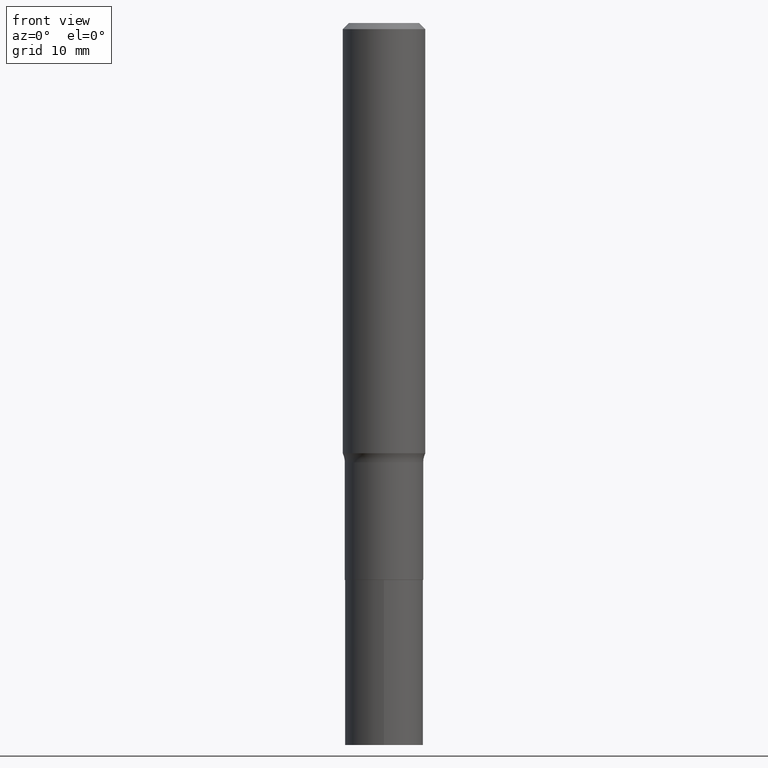
[diagram: clean part render]
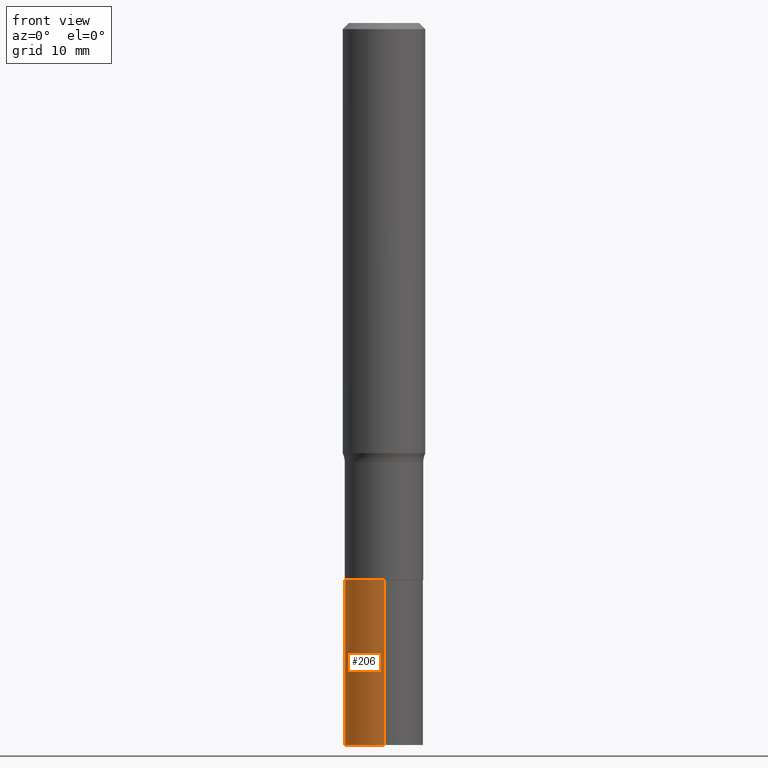
[diagram: same view with one face highlighted and labeled with its STEP entity id]
A machine part, front view. The second image highlights one B-rep face of the part: STEP entity #206.
In plain terms, the highlighted cylindrical surface (partial cylindrical patch) has radius 3.7998 mm, axis along (-0, 0, 1).
Its self-contained STEP definition (entity closure, byte-faithful):
#3 = CYLINDRICAL_SURFACE ( 'NONE', #328, 0.1496000000000000107 ) ;
#28 = CARTESIAN_POINT ( 'NONE',  ( 6.739685724306814341E-29, -9.621860887695710828E-15, -2.755900000000000460 ) ) ;
#37 = FACE_OUTER_BOUND ( 'NONE', #89, .T. ) ;
#43 = DIRECTION ( 'NONE',  ( -2.445815221012428849E-29, 3.490985253093755902E-15, 1.000000000000000000 ) ) ;
#66 = VECTOR ( 'NONE', #43, 39.37007874015748143 ) ;
#83 = DIRECTION ( 'NONE',  ( -6.982962677686265922E-15, -1.000000000000000000, 3.652203200085913145E-15 ) ) ;
#88 = ORIENTED_EDGE ( 'NONE', *, *, #312, .T. ) ;
#89 = EDGE_LOOP ( 'NONE', ( #317, #88, #266, #184 ) ) ;
#91 = CIRCLE ( 'NONE', #195, 0.1496000000000000107 ) ;
#97 = CARTESIAN_POINT ( 'NONE',  ( 1.062971932697177205E-15, 0.1495999999999925723, -2.125900000000000567 ) ) ;
#115 = EDGE_CURVE ( 'NONE', #176, #407, #91, .T. ) ;
#141 = DIRECTION ( 'NONE',  ( -2.445815221012428849E-29, 3.490985253093755902E-15, 1.000000000000000000 ) ) ;
#144 = CARTESIAN_POINT ( 'NONE',  ( 5.198822135068982087E-29, -7.422540178246643119E-15, -2.125899999999999679 ) ) ;
#176 = VERTEX_POINT ( 'NONE', #97 ) ;
#178 = DIRECTION ( 'NONE',  ( -6.982962677686265922E-15, -1.000000000000000000, 3.652203200085913145E-15 ) ) ;
#181 = EDGE_CURVE ( 'NONE', #433, #176, #437, .T. ) ;
#184 = ORIENTED_EDGE ( 'NONE', *, *, #115, .F. ) ;
#195 = AXIS2_PLACEMENT_3D ( 'NONE', #389, #209, #178 ) ;
#205 = AXIS2_PLACEMENT_3D ( 'NONE', #28, #318, #83 ) ;
#206 = ADVANCED_FACE ( 'NONE', ( #37 ), #3, .T. ) ;
#209 = DIRECTION ( 'NONE',  ( -2.445815221012428849E-29, 3.490985253093755902E-15, 1.000000000000000000 ) ) ;
#245 = VECTOR ( 'NONE', #255, 39.37007874015748143 ) ;
#255 = DIRECTION ( 'NONE',  ( -2.445815221012428849E-29, 3.490985253093755902E-15, 1.000000000000000000 ) ) ;
#257 = CARTESIAN_POINT ( 'NONE',  ( -1.044651216581813339E-15, -0.1496000000000074215, -2.125899999999999235 ) ) ;
#266 = ORIENTED_EDGE ( 'NONE', *, *, #335, .T. ) ;
#274 = CARTESIAN_POINT ( 'NONE',  ( 1.062971932697169513E-15, 0.1495999999999903796, -2.755900000000000905 ) ) ;
#289 = CARTESIAN_POINT ( 'NONE',  ( 1.062971932697161822E-15, 0.1495999999999925723, -2.125900000000000567 ) ) ;
#291 = CARTESIAN_POINT ( 'NONE',  ( -1.044651216581813339E-15, -0.1496000000000074215, -2.125899999999999235 ) ) ;
#296 = DIRECTION ( 'NONE',  ( -6.982962677686265922E-15, -1.000000000000000000, 3.652203200085913145E-15 ) ) ;
#312 = EDGE_CURVE ( 'NONE', #433, #439, #451, .T. ) ;
#317 = ORIENTED_EDGE ( 'NONE', *, *, #181, .F. ) ;
#318 = DIRECTION ( 'NONE',  ( -2.445815221012428849E-29, 3.490985253093755902E-15, 1.000000000000000000 ) ) ;
#328 = AXIS2_PLACEMENT_3D ( 'NONE', #144, #141, #296 ) ;
#335 = EDGE_CURVE ( 'NONE', #439, #407, #401, .T. ) ;
#365 = CARTESIAN_POINT ( 'NONE',  ( -1.044651216581797956E-15, -0.1496000000000096419, -2.755900000000000016 ) ) ;
#389 = CARTESIAN_POINT ( 'NONE',  ( 5.198822135068982087E-29, -7.422540178246643119E-15, -2.125899999999999679 ) ) ;
#401 = LINE ( 'NONE', #257, #66 ) ;
#407 = VERTEX_POINT ( 'NONE', #291 ) ;
#433 = VERTEX_POINT ( 'NONE', #274 ) ;
#437 = LINE ( 'NONE', #289, #245 ) ;
#439 = VERTEX_POINT ( 'NONE', #365 ) ;
#451 = CIRCLE ( 'NONE', #205, 0.1496000000000000107 ) ;